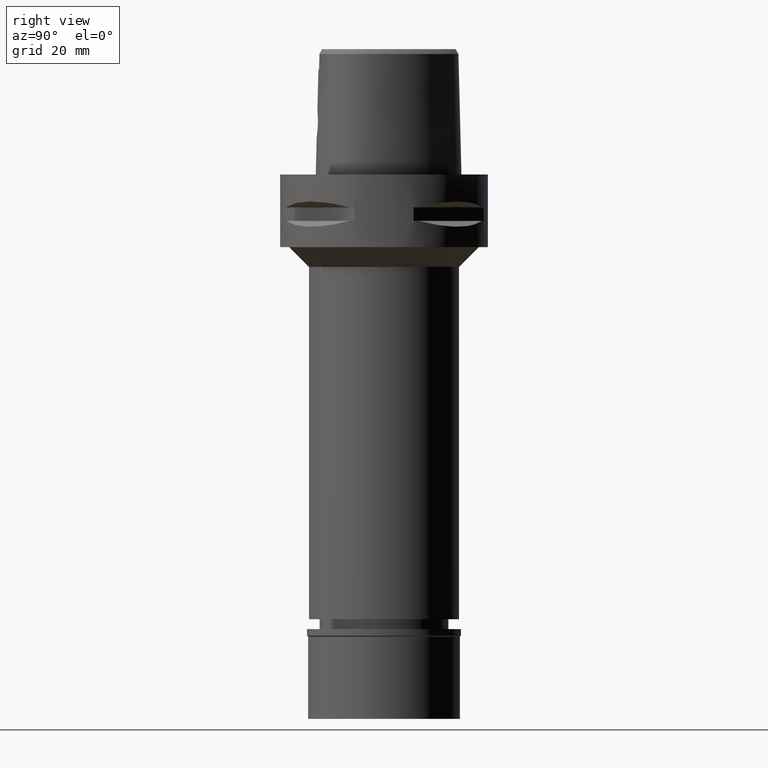
[diagram: clean part render]
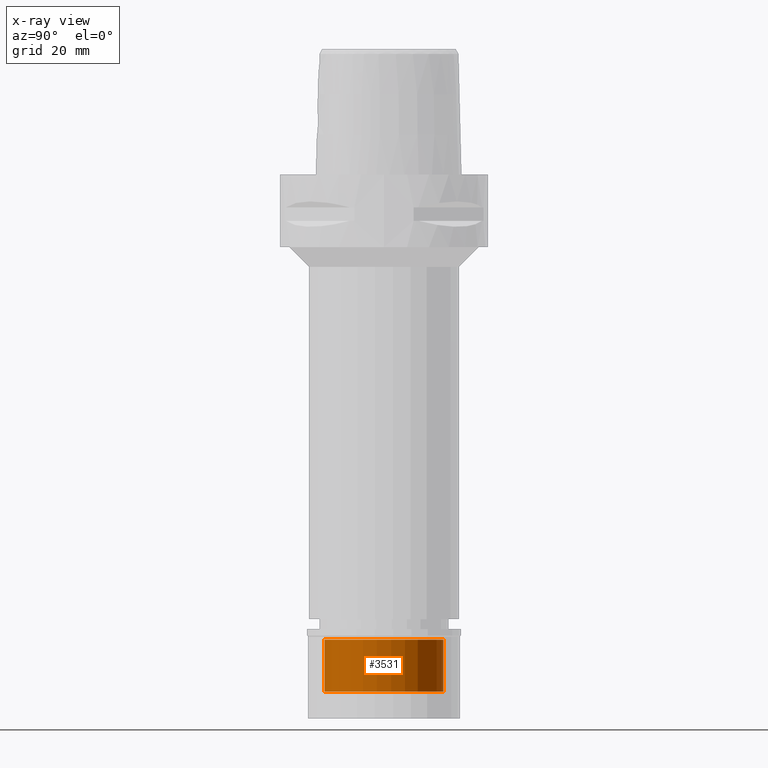
[diagram: x-ray — body ghosted, one internal face saturated and labeled with its STEP entity id]
A machine part, right view, then the same camera in x-ray: the body is ghosted and one INTERNAL B-rep face — a face not visible from any outside direction — is saturated and labeled: STEP entity #3531.
In plain terms, the highlighted cylindrical surface (partial cylindrical patch) has radius 18 mm, axis along (0, 0, -1).
Its self-contained STEP definition (entity closure, byte-faithful):
#138 = CARTESIAN_POINT ( 'NONE',  ( 0.0000000000000000000, 18.00000000000000000, -3.200000000000000178 ) ) ;
#223 = ORIENTED_EDGE ( 'NONE', *, *, #4832, .T. ) ;
#232 = VECTOR ( 'NONE', #528, 1000.000000000000000 ) ;
#466 = EDGE_LOOP ( 'NONE', ( #223, #2586, #3881, #3907 ) ) ;
#528 = DIRECTION ( 'NONE',  ( 0.0000000000000000000, 0.0000000000000000000, 1.000000000000000000 ) ) ;
#652 = DIRECTION ( 'NONE',  ( 0.0000000000000000000, 0.0000000000000000000, 1.000000000000000000 ) ) ;
#708 = AXIS2_PLACEMENT_3D ( 'NONE', #4188, #3778, #3122 ) ;
#716 = CARTESIAN_POINT ( 'NONE',  ( 0.0000000000000000000, -18.00000000000000000, -3.200000000000000178 ) ) ;
#794 = DIRECTION ( 'NONE',  ( 0.0000000000000000000, 0.0000000000000000000, -1.000000000000000000 ) ) ;
#820 = CYLINDRICAL_SURFACE ( 'NONE', #708, 18.00000000000000000 ) ;
#1103 = LINE ( 'NONE', #3831, #4238 ) ;
#1191 = CIRCLE ( 'NONE', #3106, 18.00000000000000000 ) ;
#1368 = EDGE_CURVE ( 'NONE', #4923, #1854, #2576, .T. ) ;
#1582 = DIRECTION ( 'NONE',  ( 0.0000000000000000000, 0.0000000000000000000, 1.000000000000000000 ) ) ;
#1854 = VERTEX_POINT ( 'NONE', #138 ) ;
#2097 = CARTESIAN_POINT ( 'NONE',  ( 0.0000000000000000000, -18.00000000000000000, -19.00000000000000000 ) ) ;
#2576 = CIRCLE ( 'NONE', #3362, 18.00000000000000000 ) ;
#2586 = ORIENTED_EDGE ( 'NONE', *, *, #3698, .T. ) ;
#2834 = CARTESIAN_POINT ( 'NONE',  ( 0.0000000000000000000, 0.0000000000000000000, -3.200000000000000178 ) ) ;
#2838 = LINE ( 'NONE', #4284, #232 ) ;
#3106 = AXIS2_PLACEMENT_3D ( 'NONE', #4910, #794, #4621 ) ;
#3122 = DIRECTION ( 'NONE',  ( 0.0000000000000000000, -1.000000000000000000, 0.0000000000000000000 ) ) ;
#3362 = AXIS2_PLACEMENT_3D ( 'NONE', #2834, #652, #4507 ) ;
#3388 = VERTEX_POINT ( 'NONE', #2097 ) ;
#3531 = ADVANCED_FACE ( 'NONE', ( #3880 ), #820, .F. ) ;
#3698 = EDGE_CURVE ( 'NONE', #3388, #4923, #2838, .T. ) ;
#3778 = DIRECTION ( 'NONE',  ( 0.0000000000000000000, 0.0000000000000000000, -1.000000000000000000 ) ) ;
#3831 = CARTESIAN_POINT ( 'NONE',  ( 0.0000000000000000000, 18.00000000000000000, -19.00000000000000000 ) ) ;
#3880 = FACE_OUTER_BOUND ( 'NONE', #466, .T. ) ;
#3881 = ORIENTED_EDGE ( 'NONE', *, *, #1368, .T. ) ;
#3907 = ORIENTED_EDGE ( 'NONE', *, *, #4773, .F. ) ;
#4188 = CARTESIAN_POINT ( 'NONE',  ( 0.0000000000000000000, 0.0000000000000000000, 0.0000000000000000000 ) ) ;
#4238 = VECTOR ( 'NONE', #1582, 1000.000000000000000 ) ;
#4284 = CARTESIAN_POINT ( 'NONE',  ( 0.0000000000000000000, -18.00000000000000000, -19.00000000000000000 ) ) ;
#4507 = DIRECTION ( 'NONE',  ( 0.0000000000000000000, -1.000000000000000000, 0.0000000000000000000 ) ) ;
#4517 = CARTESIAN_POINT ( 'NONE',  ( 0.0000000000000000000, 18.00000000000000000, -19.00000000000000000 ) ) ;
#4621 = DIRECTION ( 'NONE',  ( 0.0000000000000000000, 1.000000000000000000, 0.0000000000000000000 ) ) ;
#4773 = EDGE_CURVE ( 'NONE', #4904, #1854, #1103, .T. ) ;
#4832 = EDGE_CURVE ( 'NONE', #4904, #3388, #1191, .T. ) ;
#4904 = VERTEX_POINT ( 'NONE', #4517 ) ;
#4910 = CARTESIAN_POINT ( 'NONE',  ( 0.0000000000000000000, 0.0000000000000000000, -19.00000000000000000 ) ) ;
#4923 = VERTEX_POINT ( 'NONE', #716 ) ;